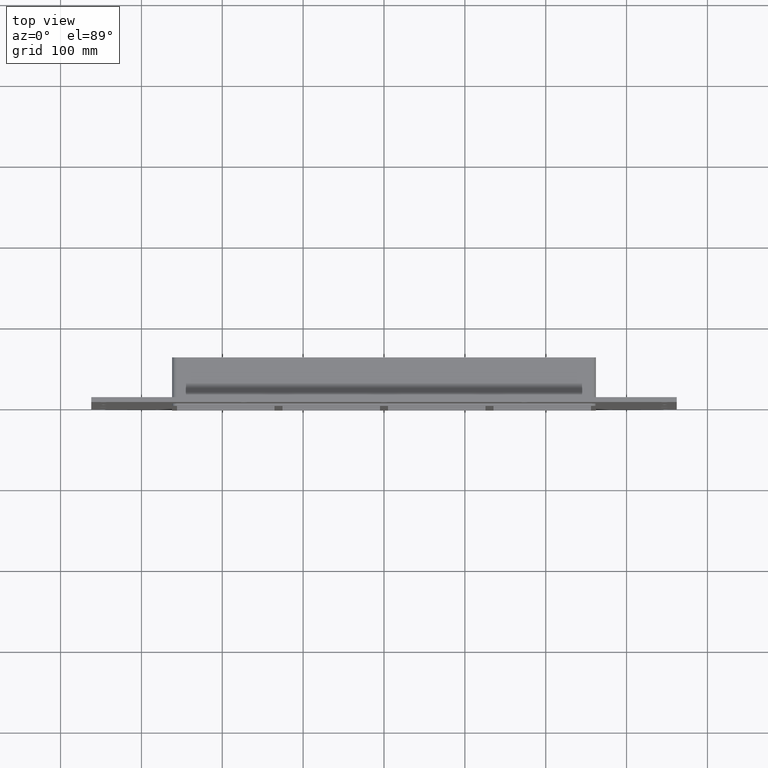
[diagram: clean part render]
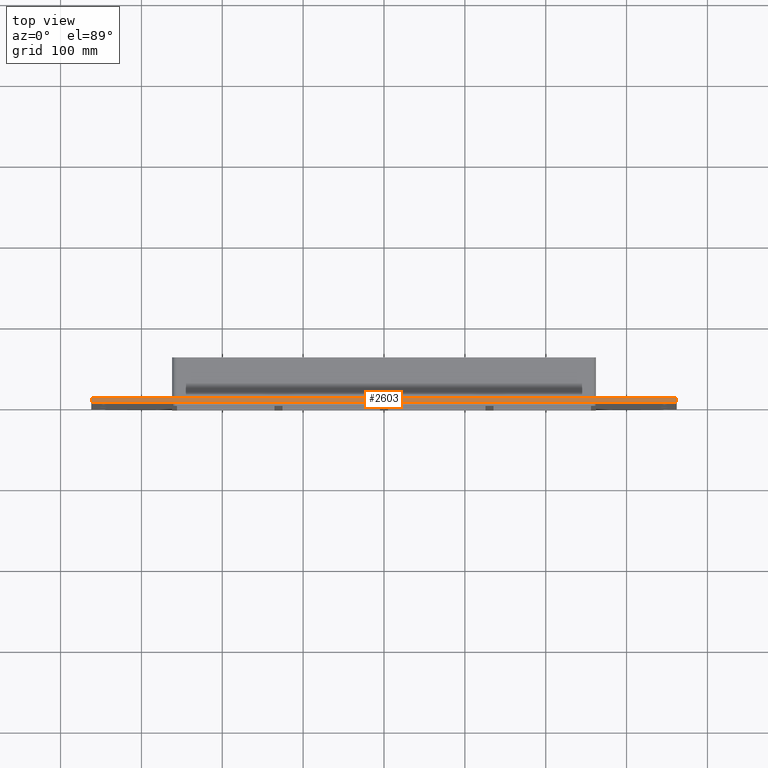
[diagram: same view with one face highlighted and labeled with its STEP entity id]
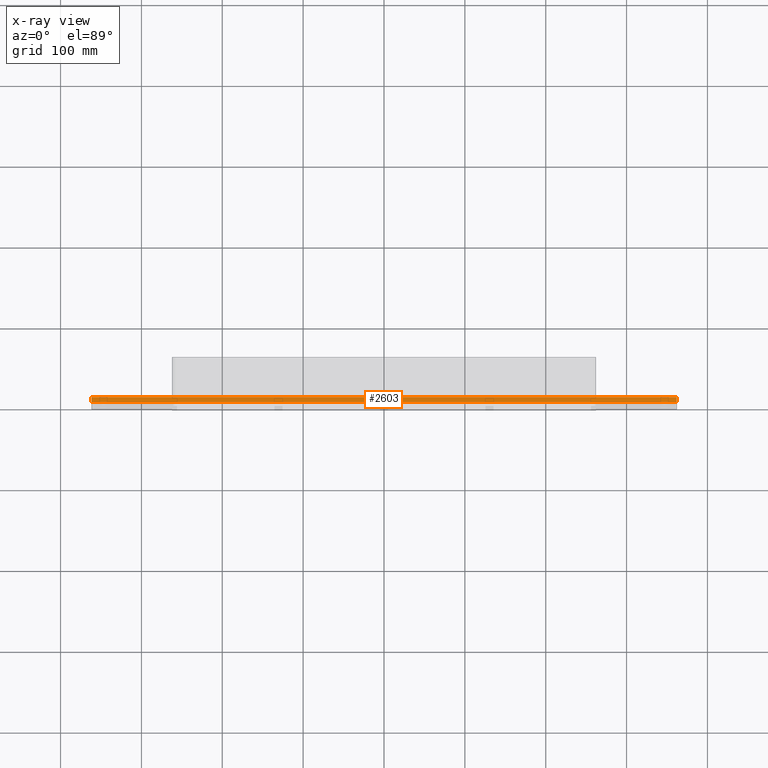
[diagram: x-ray of the same camera — body ghosted, the highlighted face saturated]
A machine part, top view. The second image highlights one B-rep face of the part: STEP entity #2603.
The next image is the same camera in x-ray: the body ghosted, the highlighted face saturated — about 0% of this face is hidden behind the body in this view.
In plain terms, the highlighted planar face has unit normal (0, 0, 1).
Its self-contained STEP definition (entity closure, byte-faithful):
#2237=CARTESIAN_POINT('',(-362.00000000000011,6.000000000000001,269.49999999999994));
#2238=VERTEX_POINT('',#2237);
#2239=CARTESIAN_POINT('',(361.99999999999994,6.000000000000001,269.49999999999994));
#2240=VERTEX_POINT('',#2239);
#2241=CARTESIAN_POINT('',(-362.00000000000011,6.000000000000001,269.49999999999994));
#2242=DIRECTION('',(1.0,0.0,0.0));
#2243=VECTOR('',#2242,724.0);
#2244=LINE('',#2241,#2243);
#2245=EDGE_CURVE('',#2238,#2240,#2244,.T.);
#2389=CARTESIAN_POINT('',(-362.00000000000011,0.0,269.49999999999994));
#2390=VERTEX_POINT('',#2389);
#2391=CARTESIAN_POINT('',(362.0,0.0,269.49999999999994));
#2392=VERTEX_POINT('',#2391);
#2393=CARTESIAN_POINT('',(-362.00000000000011,0.0,269.49999999999994));
#2394=DIRECTION('',(1.0,0.0,0.0));
#2395=VECTOR('',#2394,724.0);
#2396=LINE('',#2393,#2395);
#2397=EDGE_CURVE('',#2390,#2392,#2396,.T.);
#2542=CARTESIAN_POINT('',(-362.00000000000011,0.0,269.49999999999994));
#2543=DIRECTION('',(0.0,1.0,0.0));
#2544=VECTOR('',#2543,6.000000000000001);
#2545=LINE('',#2542,#2544);
#2546=EDGE_CURVE('',#2390,#2238,#2545,.T.);
#2583=CARTESIAN_POINT('',(362.0,0.0,269.49999999999994));
#2584=DIRECTION('',(0.0,1.0,0.0));
#2585=VECTOR('',#2584,6.000000000000001);
#2586=LINE('',#2583,#2585);
#2587=EDGE_CURVE('',#2392,#2240,#2586,.T.);
#2592=CARTESIAN_POINT('',(-362.00000000000011,0.0,269.49999999999994));
#2593=DIRECTION('',(0.0,0.0,1.0));
#2594=DIRECTION('',(1.0,0.0,0.0));
#2595=AXIS2_PLACEMENT_3D('',#2592,#2593,#2594);
#2596=PLANE('',#2595);
#2597=ORIENTED_EDGE('',*,*,#2397,.T.);
#2598=ORIENTED_EDGE('',*,*,#2587,.T.);
#2599=ORIENTED_EDGE('',*,*,#2245,.F.);
#2600=ORIENTED_EDGE('',*,*,#2546,.F.);
#2601=EDGE_LOOP('',(#2597,#2598,#2599,#2600));
#2602=FACE_OUTER_BOUND('',#2601,.T.);
#2603=ADVANCED_FACE('',(#2602),#2596,.T.);